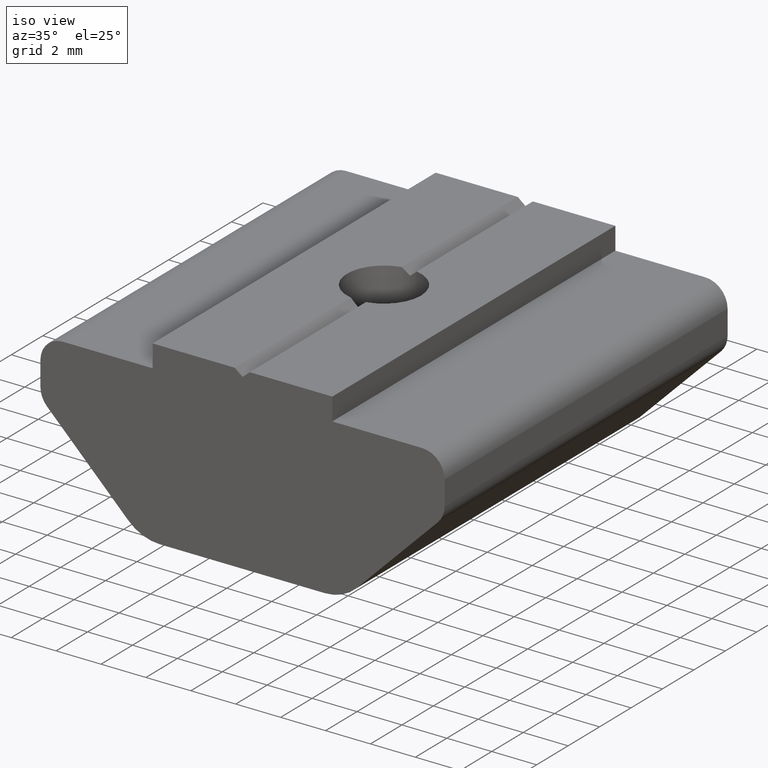
[diagram: clean part render]
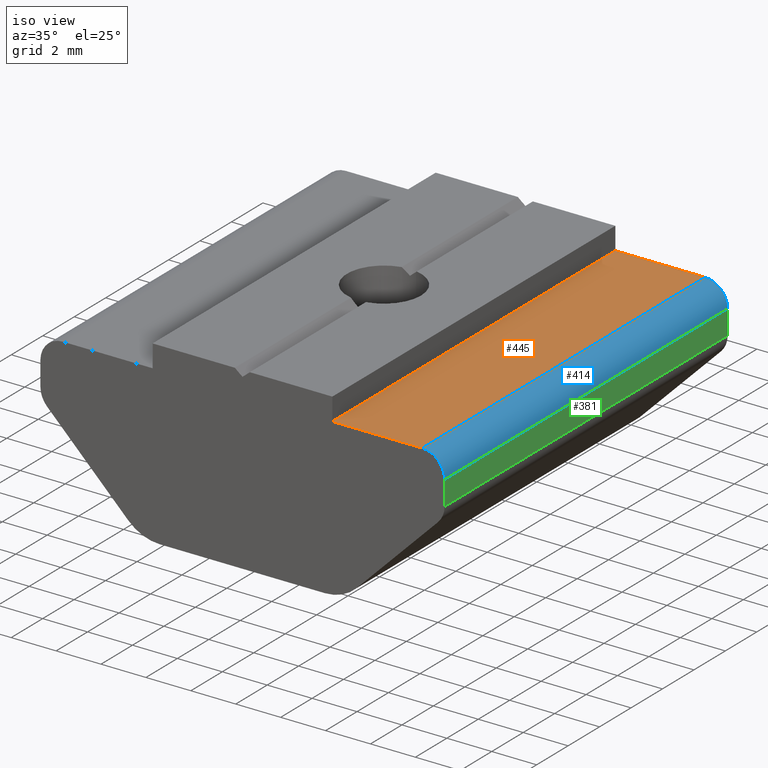
[diagram: same view with three faces highlighted in distinct colors, each labeled with its STEP entity id]
A machine part, iso view with three faces highlighted in distinct colors.
Their STEP definitions:

[orange] entity #445 — the highlighted planar face has unit normal (0, 0, 1).
#387=CARTESIAN_POINT('',(7.999998227964511,9.0,6.999998455999957));
#388=VERTEX_POINT('',#387);
#396=CARTESIAN_POINT('',(7.999998227964511,-9.0,6.999998455999958));
#397=VERTEX_POINT('',#396);
#398=CARTESIAN_POINT('',(7.999998227964511,9.0,6.999998455999957));
#399=DIRECTION('',(0.0,-1.0,0.0));
#400=VECTOR('',#399,18.0);
#401=LINE('',#398,#400);
#402=EDGE_CURVE('',#388,#397,#401,.T.);
#415=CARTESIAN_POINT('',(7.999998227964511,9.0,6.999998455999957));
#416=DIRECTION('',(0.0,0.0,1.0));
#417=DIRECTION('',(-1.0,0.0,0.0));
#418=AXIS2_PLACEMENT_3D('',#415,#416,#417);
#419=PLANE('',#418);
#420=CARTESIAN_POINT('',(3.999999120015673,9.0,6.999998455999957));
#421=VERTEX_POINT('',#420);
#422=CARTESIAN_POINT('',(7.999998227964539,9.0,6.999998455999957));
#423=DIRECTION('',(-1.0,0.0,0.0));
#424=VECTOR('',#423,3.999999107948867);
#425=LINE('',#422,#424);
#426=EDGE_CURVE('',#388,#421,#425,.T.);
#427=ORIENTED_EDGE('',*,*,#426,.T.);
#428=CARTESIAN_POINT('',(3.999999120015673,-9.0,6.999998455999958));
#429=VERTEX_POINT('',#428);
#430=CARTESIAN_POINT('',(3.999999120015673,9.0,6.999998455999957));
#431=DIRECTION('',(0.0,-1.0,0.0));
#432=VECTOR('',#431,18.0);
#433=LINE('',#430,#432);
#434=EDGE_CURVE('',#421,#429,#433,.T.);
#435=ORIENTED_EDGE('',*,*,#434,.T.);
#436=CARTESIAN_POINT('',(7.999998227964539,-9.0,6.999998455999958));
#437=DIRECTION('',(-1.0,0.0,0.0));
#438=VECTOR('',#437,3.999999107948867);
#439=LINE('',#436,#438);
#440=EDGE_CURVE('',#397,#429,#439,.T.);
#441=ORIENTED_EDGE('',*,*,#440,.F.);
#442=ORIENTED_EDGE('',*,*,#402,.F.);
#443=EDGE_LOOP('',(#427,#435,#441,#442));
#444=FACE_OUTER_BOUND('',#443,.T.);
#445=ADVANCED_FACE('',(#444),#419,.T.);

[blue] entity #414 — the highlighted cylindrical surface (edge-blend (fillet) strip) has radius 1 mm, axis along (0, -1, 0).
#356=CARTESIAN_POINT('',(8.999998010015673,9.0,5.999998677999996));
#357=VERTEX_POINT('',#356);
#364=CARTESIAN_POINT('',(8.999998010015673,-9.0,5.999998677999998));
#365=VERTEX_POINT('',#364);
#366=CARTESIAN_POINT('',(8.999998010015673,9.0,5.999998677999996));
#367=DIRECTION('',(0.0,-1.0,0.0));
#368=VECTOR('',#367,18.0);
#369=LINE('',#366,#368);
#370=EDGE_CURVE('',#357,#365,#369,.T.);
#382=CARTESIAN_POINT('',(7.999998227964539,9.0,5.999998673948880));
#383=DIRECTION('',(0.0,-1.0,6.123234E-017));
#384=DIRECTION('',(1.0,0.0,0.0));
#385=AXIS2_PLACEMENT_3D('',#382,#383,#384);
#386=CYLINDRICAL_SURFACE('',#385,0.999999782051127);
#387=CARTESIAN_POINT('',(7.999998227964511,9.0,6.999998455999957));
#388=VERTEX_POINT('',#387);
#389=CARTESIAN_POINT('',(7.999998227964539,9.0,5.999998673948880));
#390=DIRECTION('',(0.0,-1.0,6.123234E-017));
#391=DIRECTION('',(1.0,0.0,0.0));
#392=AXIS2_PLACEMENT_3D('',#389,#390,#391);
#393=CIRCLE('',#392,0.999999782051127);
#394=EDGE_CURVE('',#357,#388,#393,.T.);
#395=ORIENTED_EDGE('',*,*,#394,.T.);
#396=CARTESIAN_POINT('',(7.999998227964511,-9.0,6.999998455999958));
#397=VERTEX_POINT('',#396);
#398=CARTESIAN_POINT('',(7.999998227964511,9.0,6.999998455999957));
#399=DIRECTION('',(0.0,-1.0,0.0));
#400=VECTOR('',#399,18.0);
#401=LINE('',#398,#400);
#402=EDGE_CURVE('',#388,#397,#401,.T.);
#403=ORIENTED_EDGE('',*,*,#402,.T.);
#404=CARTESIAN_POINT('',(7.999998227964539,-9.0,5.999998673948881));
#405=DIRECTION('',(0.0,-1.0,6.123234E-017));
#406=DIRECTION('',(1.0,0.0,0.0));
#407=AXIS2_PLACEMENT_3D('',#404,#405,#406);
#408=CIRCLE('',#407,0.999999782051127);
#409=EDGE_CURVE('',#365,#397,#408,.T.);
#410=ORIENTED_EDGE('',*,*,#409,.F.);
#411=ORIENTED_EDGE('',*,*,#370,.F.);
#412=EDGE_LOOP('',(#395,#403,#410,#411));
#413=FACE_OUTER_BOUND('',#412,.T.);
#414=ADVANCED_FACE('',(#413),#386,.T.);

[green] entity #381 — the highlighted planar face has unit normal (1, 0, 0).
#323=CARTESIAN_POINT('',(8.999998010015673,9.0,4.914212476028978));
#324=VERTEX_POINT('',#323);
#332=CARTESIAN_POINT('',(8.999998010015673,-9.0,4.914212476028980));
#333=VERTEX_POINT('',#332);
#334=CARTESIAN_POINT('',(8.999998010015673,9.0,4.914212476028978));
#335=DIRECTION('',(0.0,-1.0,0.0));
#336=VECTOR('',#335,18.0);
#337=LINE('',#334,#336);
#338=EDGE_CURVE('',#324,#333,#337,.T.);
#351=CARTESIAN_POINT('',(8.999998010015673,9.0,4.914212476028978));
#352=DIRECTION('',(1.0,0.0,0.0));
#353=DIRECTION('',(0.0,0.0,1.0));
#354=AXIS2_PLACEMENT_3D('',#351,#352,#353);
#355=PLANE('',#354);
#356=CARTESIAN_POINT('',(8.999998010015673,9.0,5.999998677999996));
#357=VERTEX_POINT('',#356);
#358=CARTESIAN_POINT('',(8.999998010015673,9.0,4.914212476028978));
#359=DIRECTION('',(0.0,0.0,1.0));
#360=VECTOR('',#359,1.085786201971018);
#361=LINE('',#358,#360);
#362=EDGE_CURVE('',#324,#357,#361,.T.);
#363=ORIENTED_EDGE('',*,*,#362,.T.);
#364=CARTESIAN_POINT('',(8.999998010015673,-9.0,5.999998677999998));
#365=VERTEX_POINT('',#364);
#366=CARTESIAN_POINT('',(8.999998010015673,9.0,5.999998677999996));
#367=DIRECTION('',(0.0,-1.0,0.0));
#368=VECTOR('',#367,18.0);
#369=LINE('',#366,#368);
#370=EDGE_CURVE('',#357,#365,#369,.T.);
#371=ORIENTED_EDGE('',*,*,#370,.T.);
#372=CARTESIAN_POINT('',(8.999998010015673,-9.0,4.914212476028980));
#373=DIRECTION('',(0.0,0.0,1.0));
#374=VECTOR('',#373,1.085786201971018);
#375=LINE('',#372,#374);
#376=EDGE_CURVE('',#333,#365,#375,.T.);
#377=ORIENTED_EDGE('',*,*,#376,.F.);
#378=ORIENTED_EDGE('',*,*,#338,.F.);
#379=EDGE_LOOP('',(#363,#371,#377,#378));
#380=FACE_OUTER_BOUND('',#379,.T.);
#381=ADVANCED_FACE('',(#380),#355,.T.);